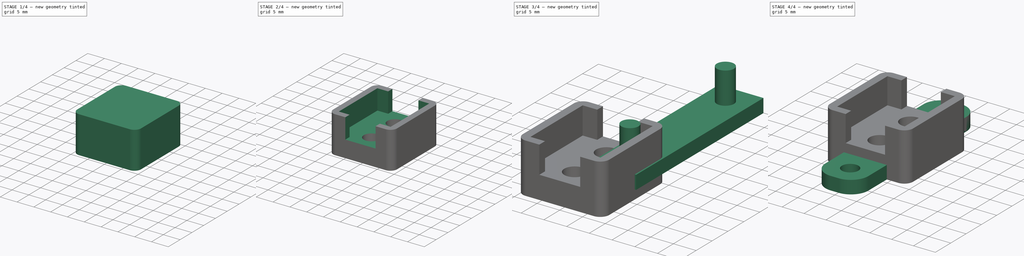
[diagram: build sequence overview — one tinted view per stage of 4, left to right]
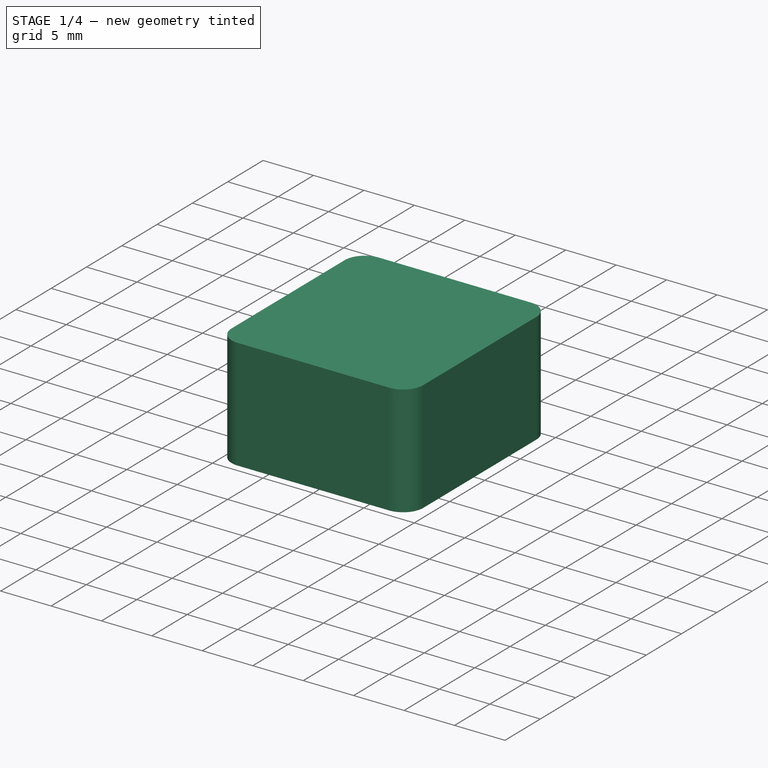
[diagram: stage 1 of 4 — iso view after this stage's code; geometry added in this stage tinted green]
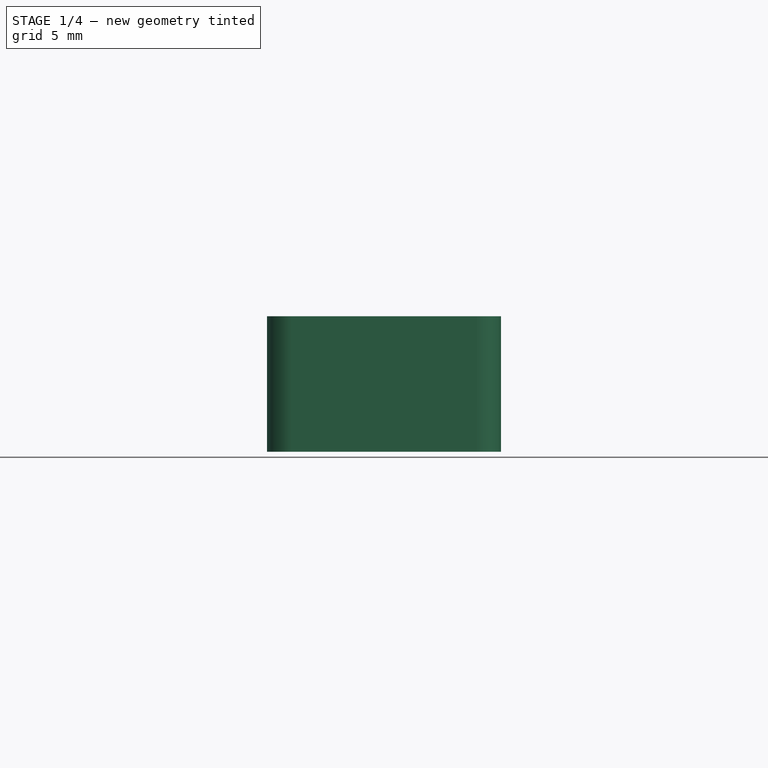
[diagram: stage 1 of 4 — front view after this stage's code; geometry added in this stage tinted green]
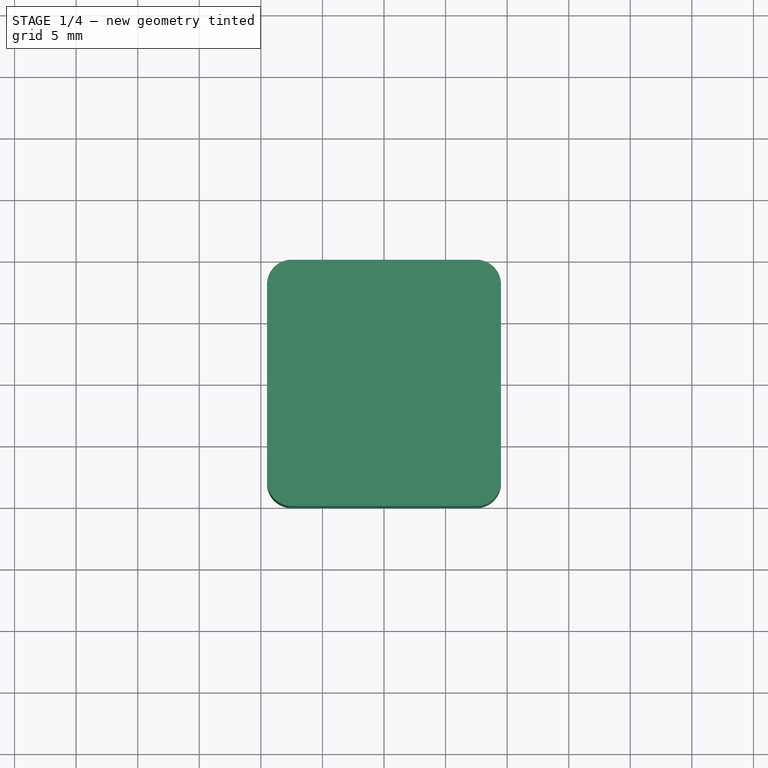
[diagram: stage 1 of 4 — top view after this stage's code; geometry added in this stage tinted green]
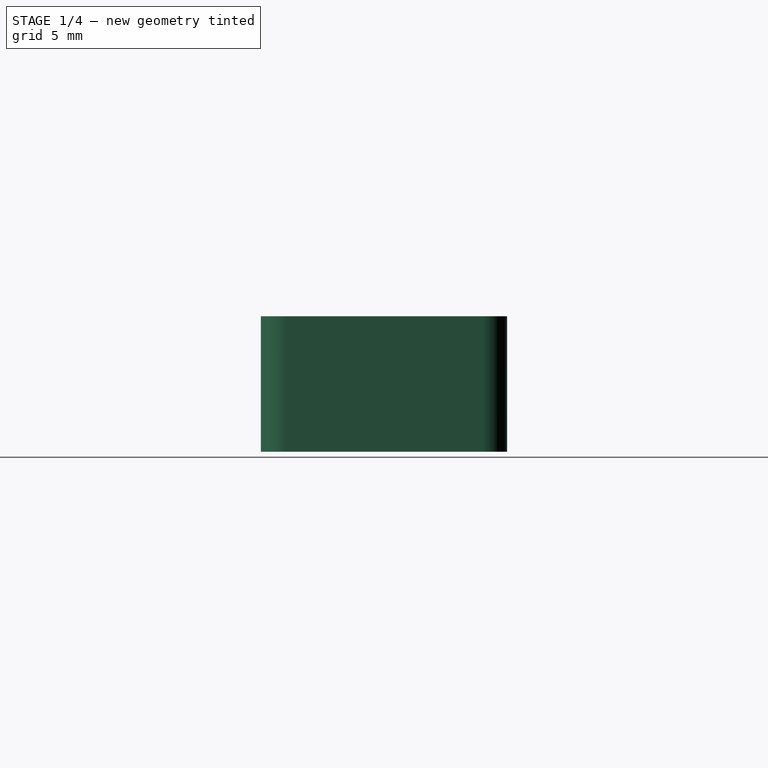
[diagram: stage 1 of 4 — right view after this stage's code; geometry added in this stage tinted green]
FCSTD DOCUMENT  (FreeCAD 0.19R)
Label: tiny_breadboard
License: FreeArt
LicenseURL: http://artlibre.org/licence/lal
objects: Part::Cut×3, Part::Cylinder×2, Part::FeaturePython×2, Part::MultiFuse×2, Part::Box×2, Part::Fillet×2, App::Part×2, Spreadsheet::Sheet×1, Sketcher::SketchObject×1, PartDesign::Pad×1, PartDesign::Body×1
note: 17 computed .brp shape members not serialized (recipe doc carries the construction recipe); baked Part::Feature solids carry a one-line shape summary decoded from their .brp

FEATURE [PartDesign::Body] Body  label="tiny bb body"
  Group = -> [Sketch,Pad]
  Origin = -> Origin001
  Placement = pos=(0,0,3) rot=(0,0,1;0rad)
  Tip = -> Pad
FEATURE [Part::Cylinder] Cylinder  label="bottom cylinder"
  Angle = 360
  AttacherType = Attacher::AttachEngine3D
  Height = 3
  Radius = 2.3
FEATURE [Part::FeaturePython] Array  label="bottom cylinder array"  # Draft array (typed FeaturePython)
  Angle = 360
  ArrayType = 0
  Axis = (0,0,1)
  Base = -> Cylinder
  Center = (0,0,0)
  Fuse = false
  IntervalAxis = (0,0,0)
  IntervalX = (1,0,0)
  IntervalY = (0,10,0)
  IntervalZ = (0,0,1)
  NumberPolar = 1
  NumberX = 1
  NumberY = 2
  NumberZ = 1
  Placement = pos=(0,-5.3,0) rot=(0,0,1;0rad)
  expr: .Placement.Base.y = -(20.6 - 10) / 2
FEATURE [Part::Box] Box  label="bb box cube"
  AttacherType = Attacher::AttachEngine3D
  Height = 11
  Length = 19
  Placement = pos=(-9.5,-10,-2) rot=(0,0,1;0rad)
  Width = 20
  expr: Length = <<p>>.bb_box_x
  expr: Width = <<p>>.bb_box_y
  expr: Height = <<p>>.bb_box_z
  expr: .Placement.Base.z = -<<p>>.bottom_wall
  expr: .Placement.Base.y = -<<p>>.bb_box_y / 2
  expr: .Placement.Base.x = -<<p>>.bb_box_x / 2
FEATURE [Part::Fillet] Fillet  label="bb box fillet"
  Base = -> Box
  Edges = 4 edges r=2: [Edge1,Edge3,Edge5,Edge7]
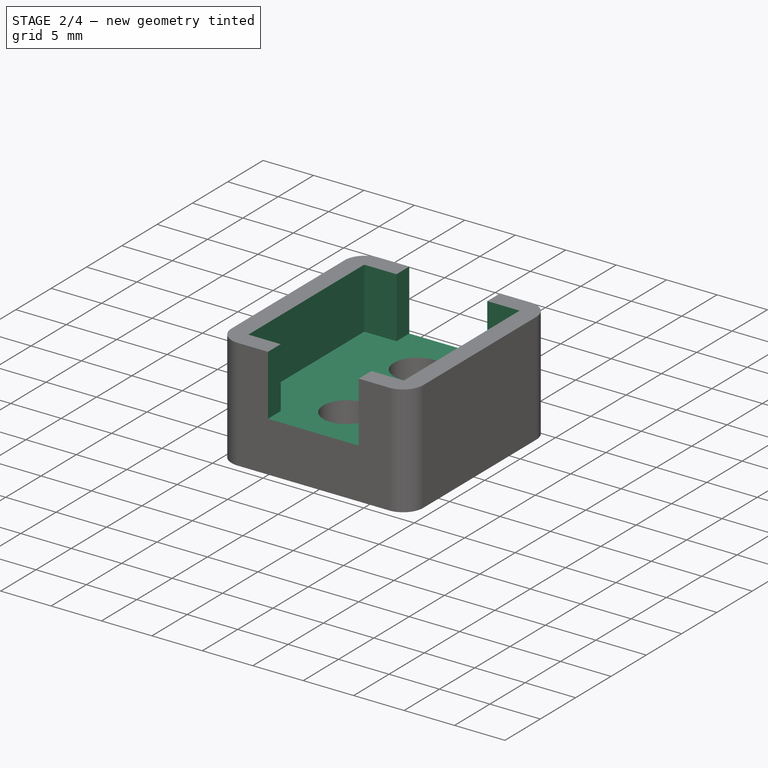
[diagram: stage 2 of 4 — iso view after this stage's code; geometry added in this stage tinted green]
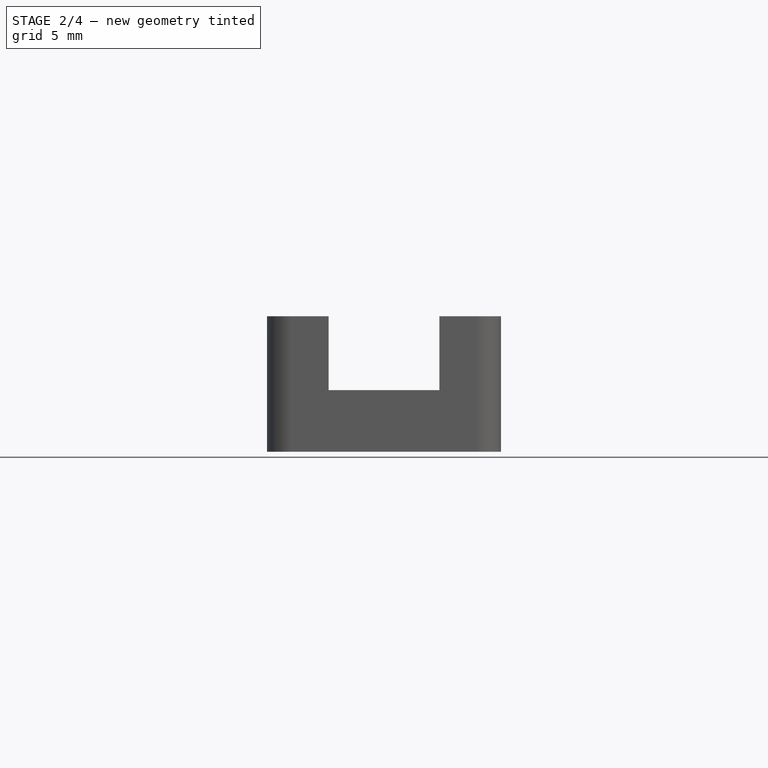
[diagram: stage 2 of 4 — front view after this stage's code; geometry added in this stage tinted green]
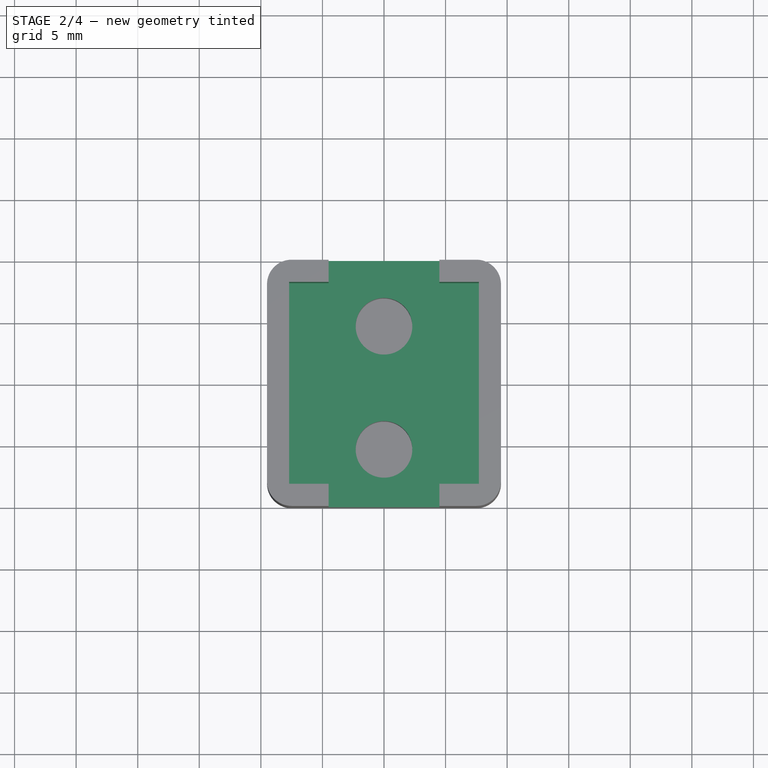
[diagram: stage 2 of 4 — top view after this stage's code; geometry added in this stage tinted green]
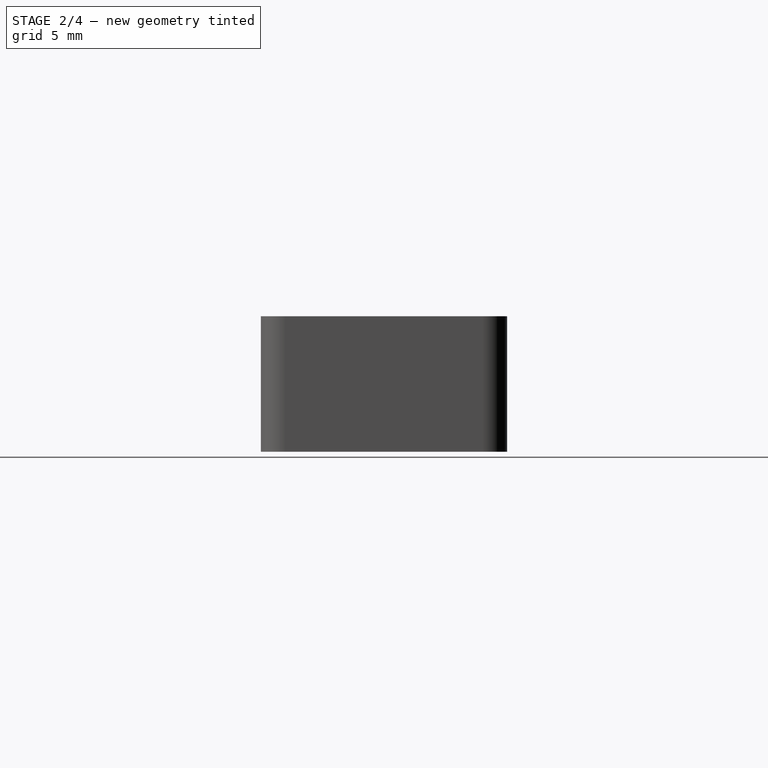
[diagram: stage 2 of 4 — right view after this stage's code; geometry added in this stage tinted green]
FEATURE [Spreadsheet::Sheet] Spreadsheet  label="p"
  cells = A1=attach_hole_dist; B1(attach_hole_dist)=10; A2=attach_hole_r; B2(attach_hole_r)=1.9; A3=attach_hole_wall; B3(attach_hole_wall)=3; A4=attach_z; B4(attach_z)=3; A5=bb_box_x; B5(bb_box_x)=19; A6=bb_box_y; B6(bb_box_y)=20; A7=bb_box_z; B7(bb_box_z)=11; A8=bottom_wall; B8(bottom_wall)=2
FEATURE [Sketcher::SketchObject] Sketch
  FullyConstrained = false
  MapMode = 5
  Support = -> [XY_Plane001]
  sketch-geometry (12):
    g0: LineSegment StartX=-4.5 StartY=10.3 StartZ=0 EndX=4.5 EndY=10.3 EndZ=0
    g1: LineSegment StartX=4.5 StartY=10.3 StartZ=0 EndX=4.5 EndY=8.2 EndZ=0
    g2: LineSegment StartX=4.5 StartY=8.2 StartZ=0 EndX=7.7 EndY=8.2 EndZ=0
    g3: LineSegment StartX=7.7 StartY=8.2 StartZ=0 EndX=7.7 EndY=-8.2 EndZ=0
    g4: LineSegment StartX=7.7 StartY=-8.2 StartZ=0 EndX=4.5 EndY=-8.2 EndZ=0
    g5: LineSegment StartX=4.5 StartY=-8.2 StartZ=0 EndX=4.5 EndY=-10.3 EndZ=0
    g6: LineSegment StartX=4.5 StartY=-10.3 StartZ=0 EndX=-4.5 EndY=-10.3 EndZ=0
    g7: LineSegment StartX=-4.5 StartY=-10.3 StartZ=0 EndX=-4.5 EndY=-8.2 EndZ=0
    g8: LineSegment StartX=-4.5 StartY=-8.2 StartZ=0 EndX=-7.7 EndY=-8.2 EndZ=0
    g9: LineSegment StartX=-7.7 StartY=-8.2 StartZ=0 EndX=-7.7 EndY=8.2 EndZ=0
    g10: LineSegment StartX=-7.7 StartY=8.2 StartZ=0 EndX=-4.5 EndY=8.2 EndZ=0
    g11: LineSegment StartX=-4.5 StartY=8.2 StartZ=0 EndX=-4.5 EndY=10.3 EndZ=0
  constraints (29):
    c: Coincident(g0,g1)
    c: Coincident(g1,g2)
    c: Coincident(g2,g3)
    c: Vertical(g3)
    c: Coincident(g3,g4)
    c: Horizontal(g4)
    c: Coincident(g4,g5)
    c: Vertical(g5)
    c: Coincident(g5,g6)
    c: Coincident(g6,g7)
    c: Coincident(g7,g8)
    c: Coincident(g8,g9)
    c: Coincident(g9,g10)
    c: Horizontal(g10)
    c: Coincident(g10,g11)
    c: Coincident(g11,g0)
    c: Vertical(g9)
    c: Horizontal(g2)
    c: Symmetric(g10,g1,g-2)
    c: Symmetric(g0,g0,g-2)
    c: Symmetric(g6,g5,g-2)
    c: Symmetric(g7,g4,g-2)
    c: Symmetric(g3,g8,g-2)
    c: DistanceX(g6,g6) = 9
    c: Symmetric(g10,g7,g-1)
    c: Symmetric(g6,g0,g-1)
    c: DistanceY(g9,g9) = 16.4
    c: DistanceY(g5,g0) = 20.6
    c: DistanceX(g9,g2) = 15.4
FEATURE [PartDesign::Pad] Pad
  AllowMultiFace = false
  Direction = (1,1,1)
  Length = 10
  Length2 = 100
  Profile = -> Sketch
  Type = 0
FEATURE [Part::MultiFuse] Fusion  label="tiny bb mockup"
  Shapes = -> [Array,Body]
FEATURE [App::Part] Part  label="small bread board holder"
  Group = -> [Box005,Cut002,Fusion,Box,Fusion001,Fillet,Array,Array002,Cylinder001,Body,Fillet002,Cylinder,Cut]
  Origin = -> Origin
FEATURE [Part::Cut] Cut003  label="bb box cut001"
  Base = -> Fillet
  Tool = -> Fusion
FEATURE [App::Part] Part001  label="small bread board holder no attach"
  Group = -> [Cut003]
  Origin = -> Origin002
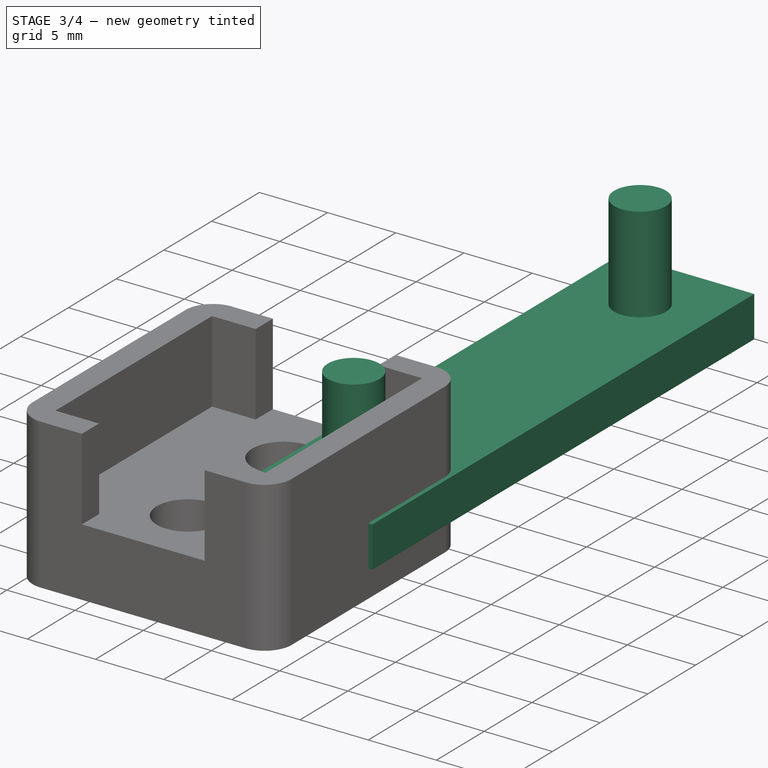
[diagram: stage 3 of 4 — iso view after this stage's code; geometry added in this stage tinted green]
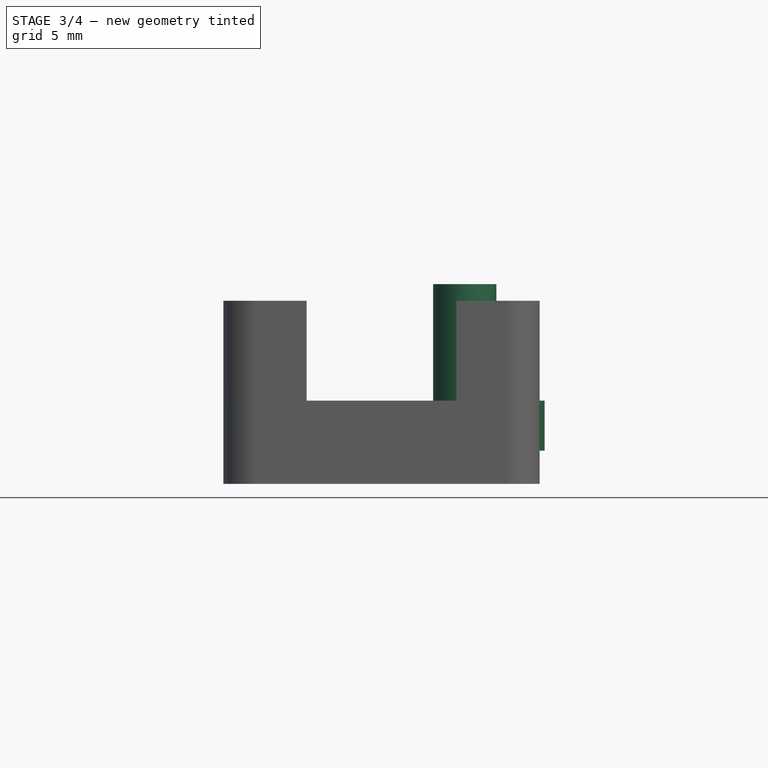
[diagram: stage 3 of 4 — front view after this stage's code; geometry added in this stage tinted green]
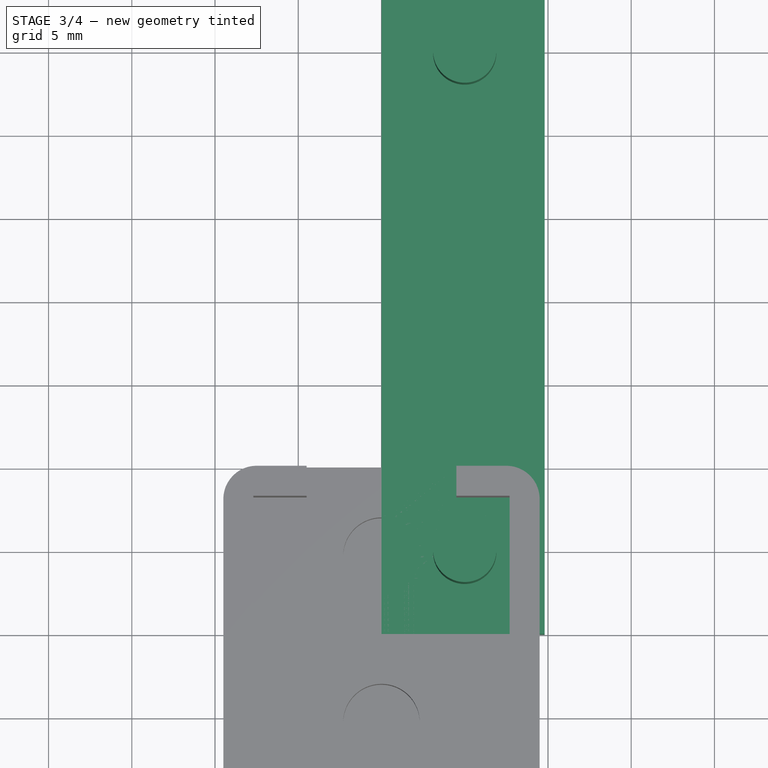
[diagram: stage 3 of 4 — top view after this stage's code; geometry added in this stage tinted green]
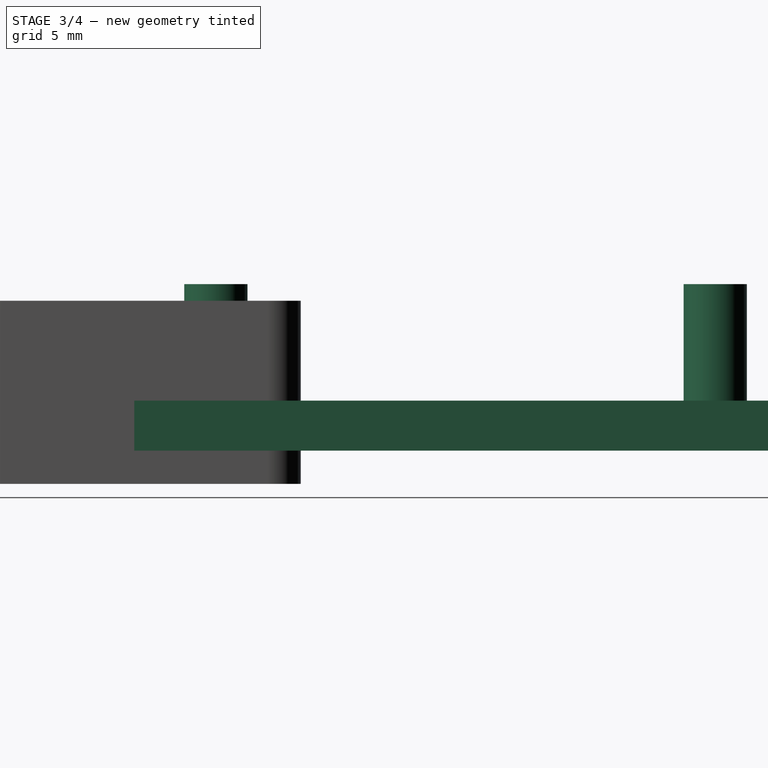
[diagram: stage 3 of 4 — right view after this stage's code; geometry added in this stage tinted green]
FEATURE [Part::Box] Box005  label="ears cube"
  AttacherType = Attacher::AttachEngine3D
  Height = 3
  Length = 9.8
  Width = 40
  expr: Width = floor(<<p>>.bb_box_y / <<p>>.attach_hole_dist + 2) * <<p>>.attach_hole_dist
  expr: Length = (<<p>>.attach_hole_r + <<p>>.attach_hole_wall) * 2
  expr: Height = <<p>>.attach_z
FEATURE [Part::Cylinder] Cylinder001  label="attach hole"
  Angle = 360
  AttacherType = Attacher::AttachEngine3D
  Height = 10
  Placement = pos=(5,4.9,0) rot=(0,0,1;0rad)
  Radius = 1.9
  expr: Radius = <<p>>.attach_hole_r
  expr: .Placement.Base.y = <<p>>.attach_hole_r + <<p>>.attach_hole_wall
  expr: .Placement.Base.x = <<p>>.attach_hole_dist / 2
FEATURE [Part::FeaturePython] Array002  label="attach hole array"  # Draft array (typed FeaturePython)
  Angle = 360
  ArrayType = 0
  Axis = (0,0,1)
  Base = -> Cylinder001
  Center = (0,0,0)
  Fuse = false
  IntervalAxis = (0,0,0)
  IntervalX = (1,0,0)
  IntervalY = (0,30,0)
  IntervalZ = (0,0,1)
  NumberPolar = 1
  NumberX = 1
  NumberY = 2
  NumberZ = 1
  expr: .IntervalY.y = floor(<<p>>.bb_box_y / <<p>>.attach_hole_dist + 1) * <<p>>.attach_hole_dist
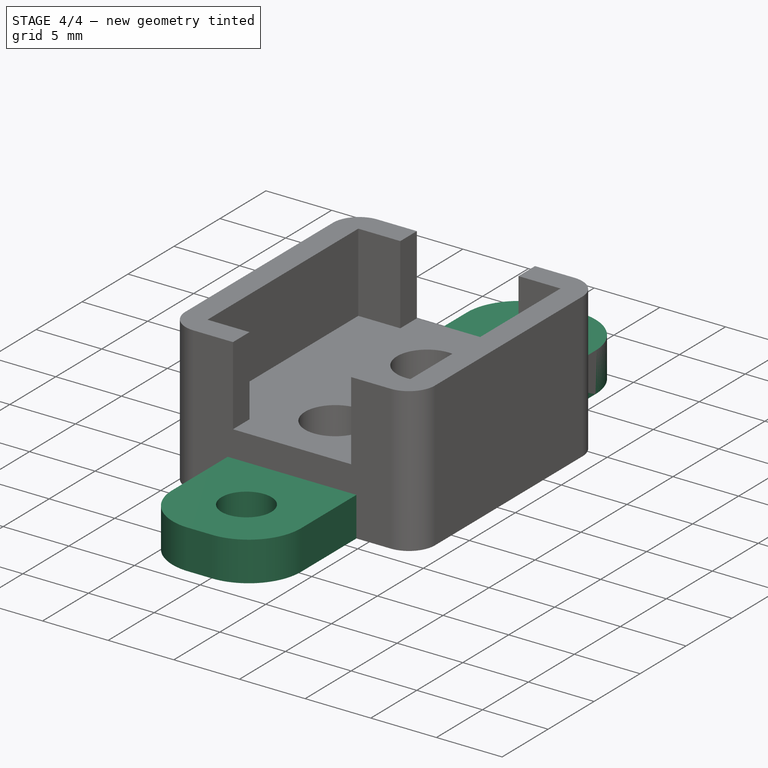
[diagram: stage 4 of 4 — iso view after this stage's code; geometry added in this stage tinted green]
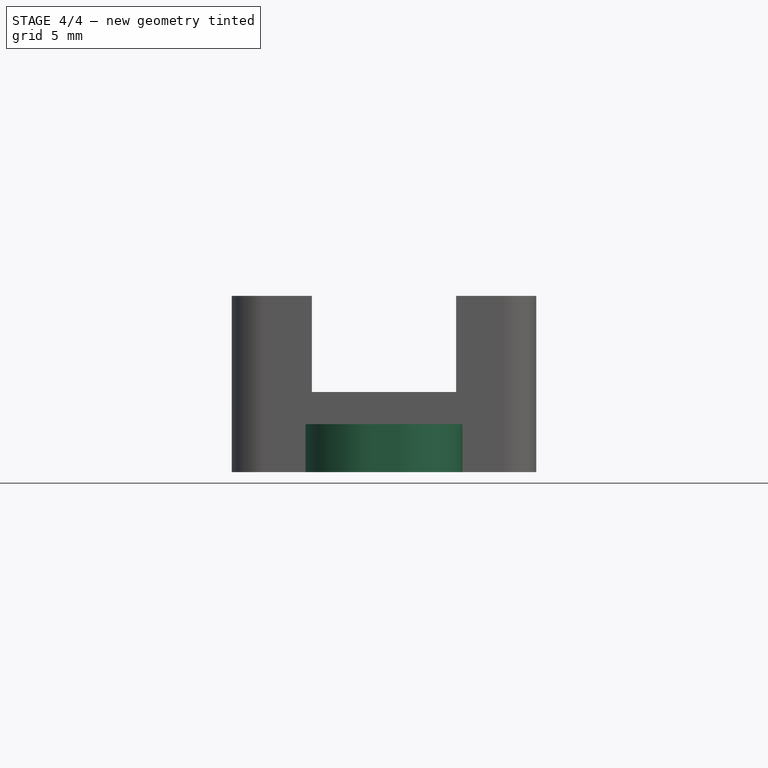
[diagram: stage 4 of 4 — front view after this stage's code; geometry added in this stage tinted green]
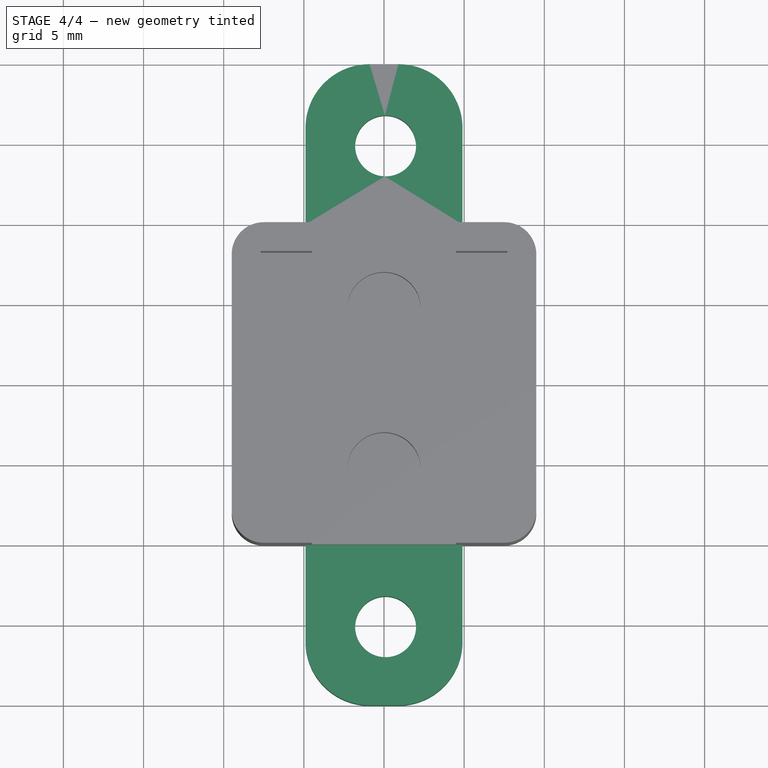
[diagram: stage 4 of 4 — top view after this stage's code; geometry added in this stage tinted green]
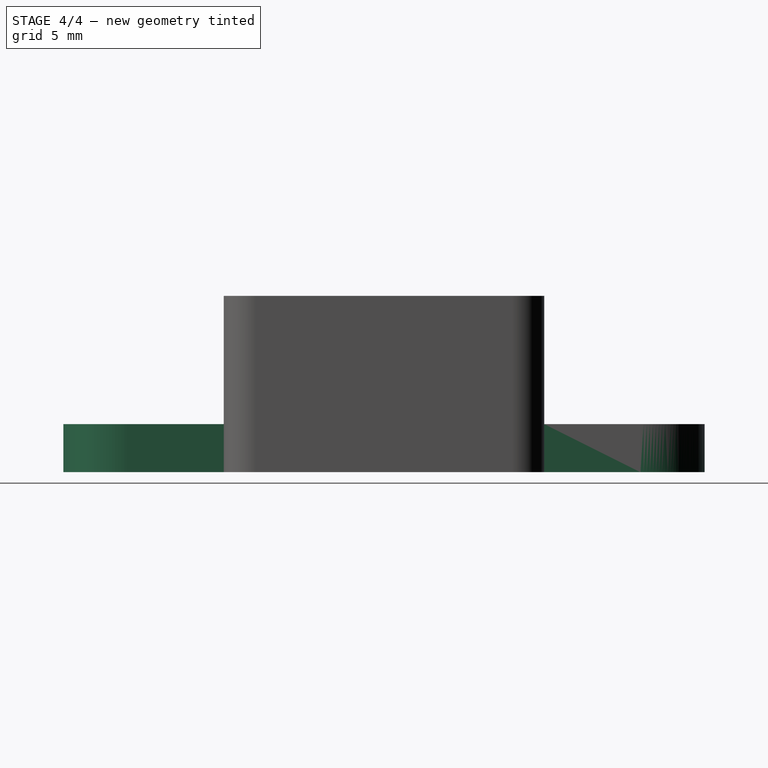
[diagram: stage 4 of 4 — right view after this stage's code; geometry added in this stage tinted green]
FEATURE [Part::Fillet] Fillet002  label="ears cube fillet"
  Base = -> Box005
  Edges = 4 edges r=4: [Edge1,Edge3,Edge5,Edge7]
FEATURE [Part::Cut] Cut002  label="attach plane"
  Base = -> Fillet002
  Placement = pos=(-4.9,-20,-2) rot=(0,0,1;0rad)
  Tool = -> Array002
  expr: .Placement.Base.y = -(floor(<<p>>.bb_box_y / <<p>>.attach_hole_dist + 2) * <<p>>.attach_hole_dist) / 2
  expr: .Placement.Base.x = -(<<p>>.attach_hole_r + <<p>>.attach_hole_wall)
  expr: .Placement.Base.z = -<<p>>.bottom_wall
FEATURE [Part::MultiFuse] Fusion001  label="bb box fusion"
  Shapes = -> [Cut002,Fillet]
FEATURE [Part::Cut] Cut  label="bb box cut"
  Base = -> Fusion001
  Tool = -> Fusion
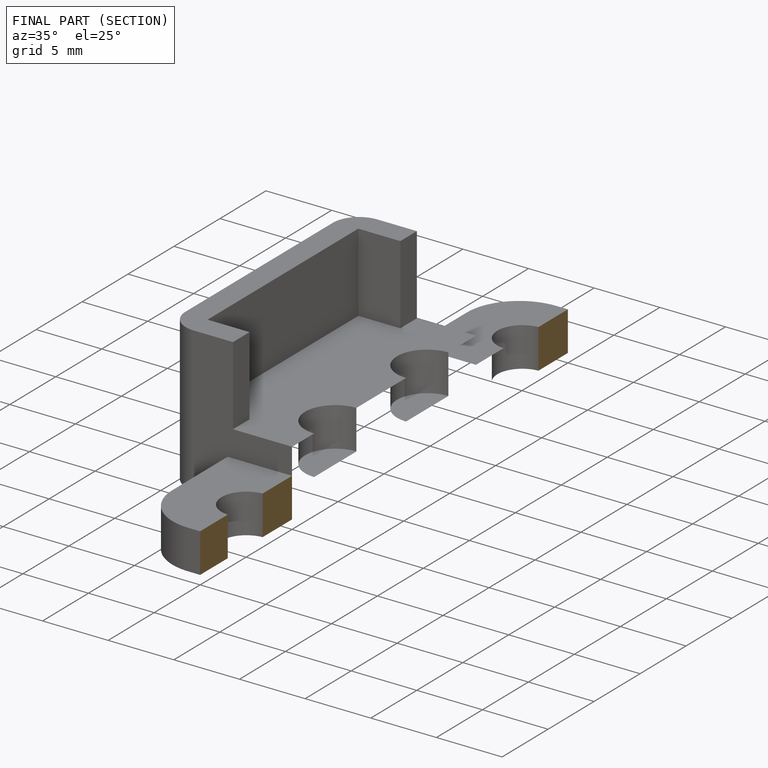
[diagram: finished part — half-section view (interior)]
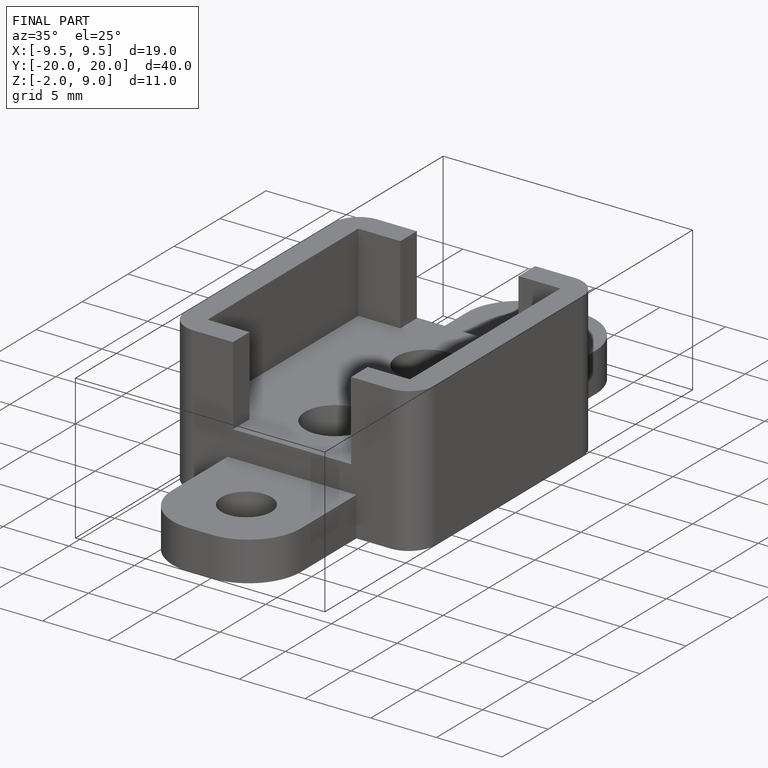
[diagram: finished part — iso view with bounding-box wireframe]
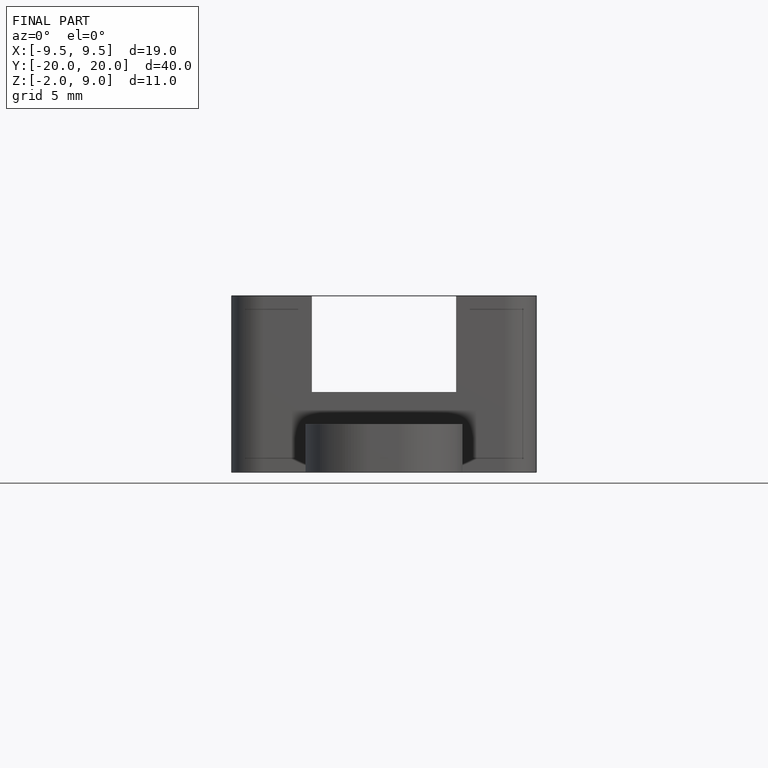
[diagram: finished part — front view with bounding-box wireframe]
